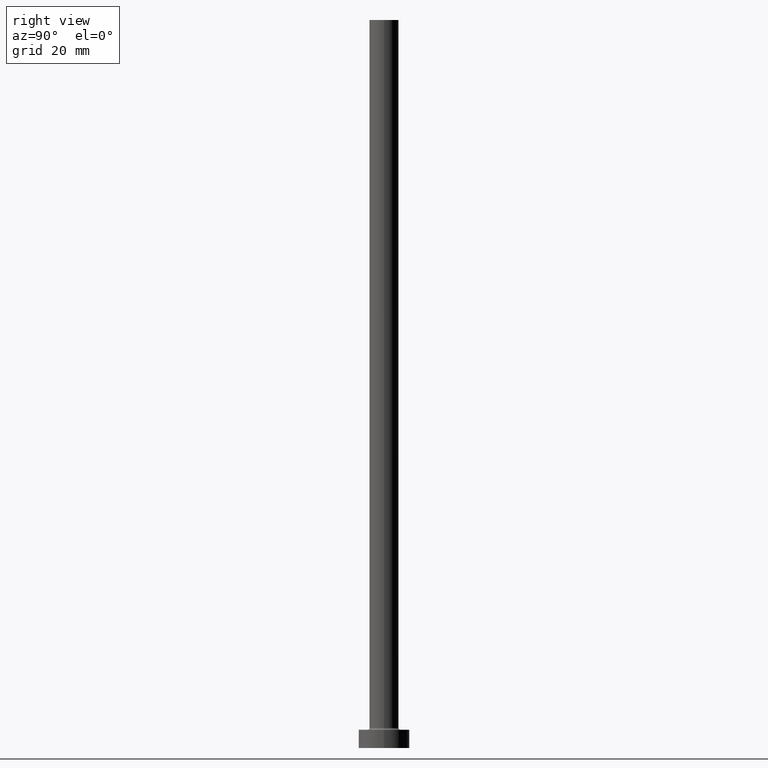
[diagram: clean part render]
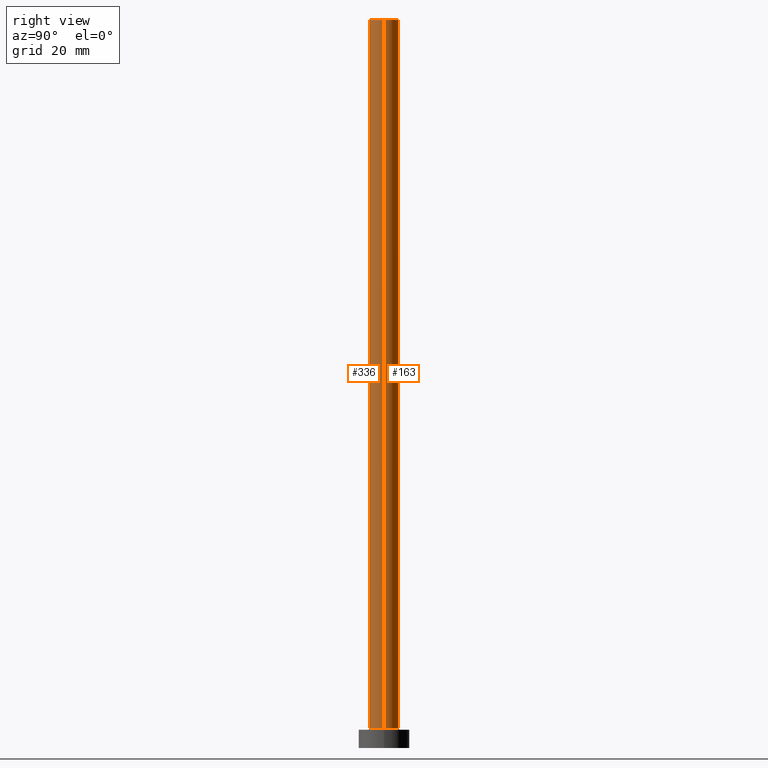
[diagram: same view with one multi-face feature highlighted, each face labeled with its STEP entity id]
A machine part, right view. The highlighted faces form ONE feature: a constant-radius fillet chain: 2 tangent blend faces with common blend radius 4 mm. The faces share edges in the B-rep.
Their STEP definitions:
[1] entity #163 (Cylinder):
#33 = VERTEX_POINT ( 'NONE', #191 ) ;
#55 = VECTOR ( 'NONE', #275, 1000.000000000000000 ) ;
#61 = LINE ( 'NONE', #99, #55 ) ;
#65 = CARTESIAN_POINT ( 'NONE',  ( 0.000000000000000000, 0.000000000000000000, 200.0000000000000000 ) ) ;
#70 = ORIENTED_EDGE ( 'NONE', *, *, #444, .F. ) ;
#99 = CARTESIAN_POINT ( 'NONE',  ( 4.000000000000000000, 4.898587196589412829E-16, 200.0000000000000000 ) ) ;
#105 = DIRECTION ( 'NONE',  ( 0.000000000000000000, 0.000000000000000000, 1.000000000000000000 ) ) ;
#147 = CARTESIAN_POINT ( 'NONE',  ( 0.000000000000000000, 0.000000000000000000, 5.500000000000005329 ) ) ;
#151 = CARTESIAN_POINT ( 'NONE',  ( -4.000000000000000000, 0.000000000000000000, 5.500000000000005329 ) ) ;
#160 = AXIS2_PLACEMENT_3D ( 'NONE', #65, #228, #413 ) ;
#163 = ADVANCED_FACE ( 'NONE', ( #269 ), #273, .T. ) ;
#167 = CARTESIAN_POINT ( 'NONE',  ( 4.000000000000000000, 4.898587196589412829E-16, 200.0000000000000000 ) ) ;
#177 = VERTEX_POINT ( 'NONE', #346 ) ;
#184 = DIRECTION ( 'NONE',  ( 1.000000000000000000, 0.000000000000000000, 0.000000000000000000 ) ) ;
#186 = AXIS2_PLACEMENT_3D ( 'NONE', #147, #105, #184 ) ;
#191 = CARTESIAN_POINT ( 'NONE',  ( 4.000000000000000000, 4.898587196589412829E-16, 5.500000000000005329 ) ) ;
#228 = DIRECTION ( 'NONE',  ( 0.000000000000000000, 0.000000000000000000, 1.000000000000000000 ) ) ;
#235 = ORIENTED_EDGE ( 'NONE', *, *, #299, .T. ) ;
#239 = VERTEX_POINT ( 'NONE', #167 ) ;
#255 = AXIS2_PLACEMENT_3D ( 'NONE', #414, #343, #315 ) ;
#267 = LINE ( 'NONE', #450, #313 ) ;
#269 = FACE_OUTER_BOUND ( 'NONE', #300, .T. ) ;
#273 = CYLINDRICAL_SURFACE ( 'NONE', #255, 4.000000000000000000 ) ;
#275 = DIRECTION ( 'NONE',  ( -0.000000000000000000, -0.000000000000000000, -1.000000000000000000 ) ) ;
#299 = EDGE_CURVE ( 'NONE', #33, #348, #384, .T. ) ;
#300 = EDGE_LOOP ( 'NONE', ( #70, #437, #235, #339 ) ) ;
#304 = DIRECTION ( 'NONE',  ( -0.000000000000000000, -0.000000000000000000, -1.000000000000000000 ) ) ;
#313 = VECTOR ( 'NONE', #304, 1000.000000000000000 ) ;
#315 = DIRECTION ( 'NONE',  ( -1.000000000000000000, 0.000000000000000000, 0.000000000000000000 ) ) ;
#339 = ORIENTED_EDGE ( 'NONE', *, *, #447, .F. ) ;
#343 = DIRECTION ( 'NONE',  ( -0.000000000000000000, -0.000000000000000000, -1.000000000000000000 ) ) ;
#346 = CARTESIAN_POINT ( 'NONE',  ( -4.000000000000000000, 0.000000000000000000, 200.0000000000000000 ) ) ;
#348 = VERTEX_POINT ( 'NONE', #151 ) ;
#384 = CIRCLE ( 'NONE', #186, 4.000000000000000000 ) ;
#413 = DIRECTION ( 'NONE',  ( 1.000000000000000000, 0.000000000000000000, 0.000000000000000000 ) ) ;
#414 = CARTESIAN_POINT ( 'NONE',  ( 0.000000000000000000, 0.000000000000000000, 200.0000000000000000 ) ) ;
#431 = EDGE_CURVE ( 'NONE', #239, #33, #61, .T. ) ;
#437 = ORIENTED_EDGE ( 'NONE', *, *, #431, .T. ) ;
#444 = EDGE_CURVE ( 'NONE', #239, #177, #457, .T. ) ;
#447 = EDGE_CURVE ( 'NONE', #177, #348, #267, .T. ) ;
#450 = CARTESIAN_POINT ( 'NONE',  ( -4.000000000000000000, 0.000000000000000000, 200.0000000000000000 ) ) ;
#457 = CIRCLE ( 'NONE', #160, 4.000000000000000000 ) ;
[2] entity #336 (Cylinder):
#2 = CARTESIAN_POINT ( 'NONE',  ( 0.000000000000000000, 0.000000000000000000, 200.0000000000000000 ) ) ;
#33 = VERTEX_POINT ( 'NONE', #191 ) ;
#36 = DIRECTION ( 'NONE',  ( -0.000000000000000000, -0.000000000000000000, -1.000000000000000000 ) ) ;
#55 = VECTOR ( 'NONE', #275, 1000.000000000000000 ) ;
#61 = LINE ( 'NONE', #99, #55 ) ;
#67 = DIRECTION ( 'NONE',  ( 0.000000000000000000, 0.000000000000000000, 1.000000000000000000 ) ) ;
#71 = CIRCLE ( 'NONE', #333, 4.000000000000000000 ) ;
#94 = CIRCLE ( 'NONE', #404, 4.000000000000000000 ) ;
#99 = CARTESIAN_POINT ( 'NONE',  ( 4.000000000000000000, 4.898587196589412829E-16, 200.0000000000000000 ) ) ;
#141 = DIRECTION ( 'NONE',  ( 1.000000000000000000, 0.000000000000000000, 0.000000000000000000 ) ) ;
#151 = CARTESIAN_POINT ( 'NONE',  ( -4.000000000000000000, 0.000000000000000000, 5.500000000000005329 ) ) ;
#167 = CARTESIAN_POINT ( 'NONE',  ( 4.000000000000000000, 4.898587196589412829E-16, 200.0000000000000000 ) ) ;
#177 = VERTEX_POINT ( 'NONE', #346 ) ;
#187 = EDGE_CURVE ( 'NONE', #177, #239, #94, .T. ) ;
#189 = CARTESIAN_POINT ( 'NONE',  ( 0.000000000000000000, 0.000000000000000000, 5.500000000000005329 ) ) ;
#191 = CARTESIAN_POINT ( 'NONE',  ( 4.000000000000000000, 4.898587196589412829E-16, 5.500000000000005329 ) ) ;
#205 = FACE_OUTER_BOUND ( 'NONE', #242, .T. ) ;
#239 = VERTEX_POINT ( 'NONE', #167 ) ;
#242 = EDGE_LOOP ( 'NONE', ( #347, #391, #449, #441 ) ) ;
#263 = CARTESIAN_POINT ( 'NONE',  ( 0.000000000000000000, 0.000000000000000000, 200.0000000000000000 ) ) ;
#267 = LINE ( 'NONE', #450, #313 ) ;
#275 = DIRECTION ( 'NONE',  ( -0.000000000000000000, -0.000000000000000000, -1.000000000000000000 ) ) ;
#304 = DIRECTION ( 'NONE',  ( -0.000000000000000000, -0.000000000000000000, -1.000000000000000000 ) ) ;
#305 = DIRECTION ( 'NONE',  ( 0.000000000000000000, 0.000000000000000000, 1.000000000000000000 ) ) ;
#309 = EDGE_CURVE ( 'NONE', #348, #33, #71, .T. ) ;
#313 = VECTOR ( 'NONE', #304, 1000.000000000000000 ) ;
#333 = AXIS2_PLACEMENT_3D ( 'NONE', #189, #67, #352 ) ;
#336 = ADVANCED_FACE ( 'NONE', ( #205 ), #357, .T. ) ;
#346 = CARTESIAN_POINT ( 'NONE',  ( -4.000000000000000000, 0.000000000000000000, 200.0000000000000000 ) ) ;
#347 = ORIENTED_EDGE ( 'NONE', *, *, #431, .F. ) ;
#348 = VERTEX_POINT ( 'NONE', #151 ) ;
#351 = DIRECTION ( 'NONE',  ( -1.000000000000000000, 0.000000000000000000, 0.000000000000000000 ) ) ;
#352 = DIRECTION ( 'NONE',  ( 1.000000000000000000, 0.000000000000000000, 0.000000000000000000 ) ) ;
#357 = CYLINDRICAL_SURFACE ( 'NONE', #386, 4.000000000000000000 ) ;
#386 = AXIS2_PLACEMENT_3D ( 'NONE', #2, #36, #351 ) ;
#391 = ORIENTED_EDGE ( 'NONE', *, *, #187, .F. ) ;
#404 = AXIS2_PLACEMENT_3D ( 'NONE', #263, #305, #141 ) ;
#431 = EDGE_CURVE ( 'NONE', #239, #33, #61, .T. ) ;
#441 = ORIENTED_EDGE ( 'NONE', *, *, #309, .T. ) ;
#447 = EDGE_CURVE ( 'NONE', #177, #348, #267, .T. ) ;
#449 = ORIENTED_EDGE ( 'NONE', *, *, #447, .T. ) ;
#450 = CARTESIAN_POINT ( 'NONE',  ( -4.000000000000000000, 0.000000000000000000, 200.0000000000000000 ) ) ;